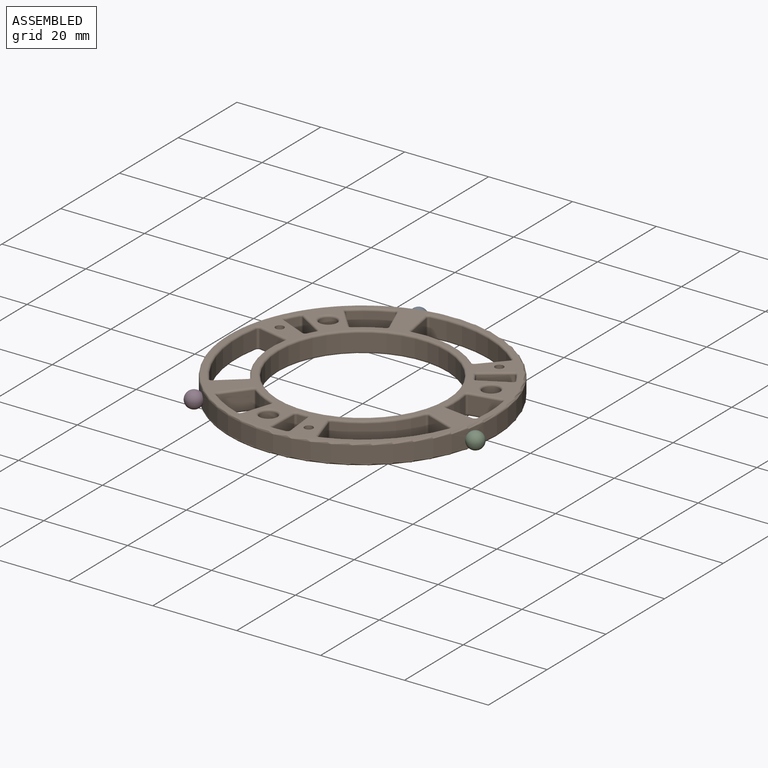
[diagram: assembled view]
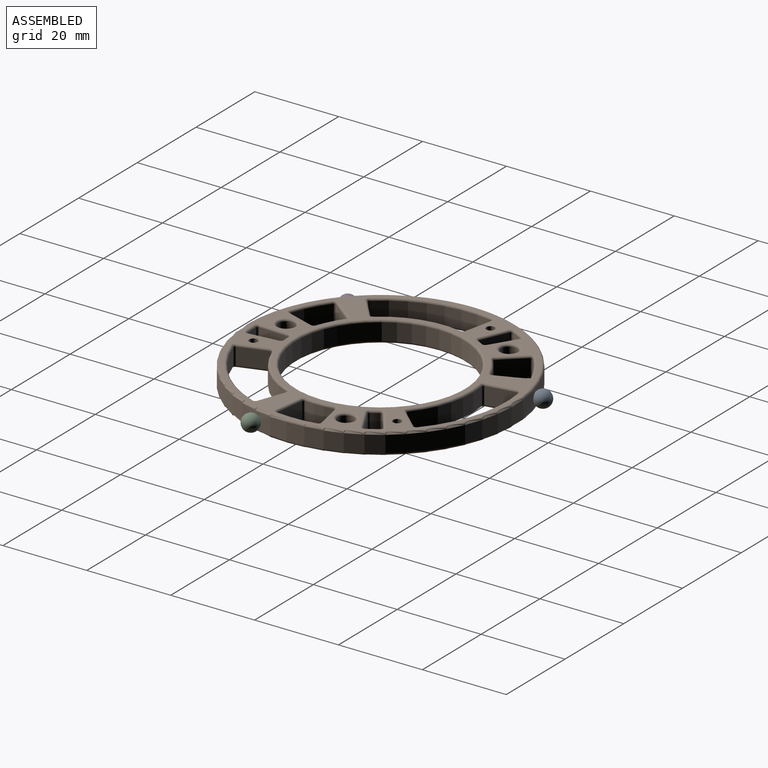
[diagram: assembled view, second angle]
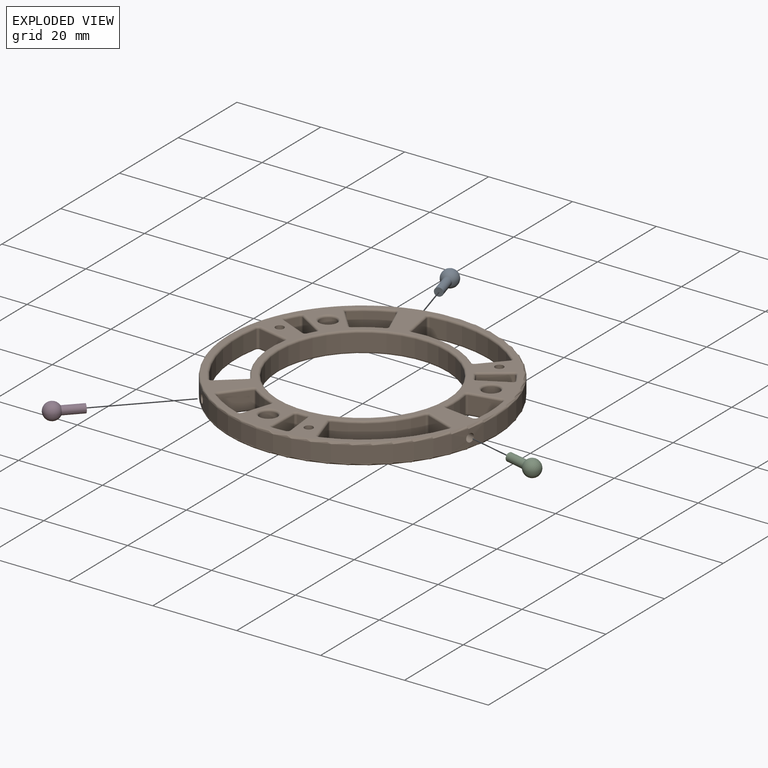
[diagram: exploded view]
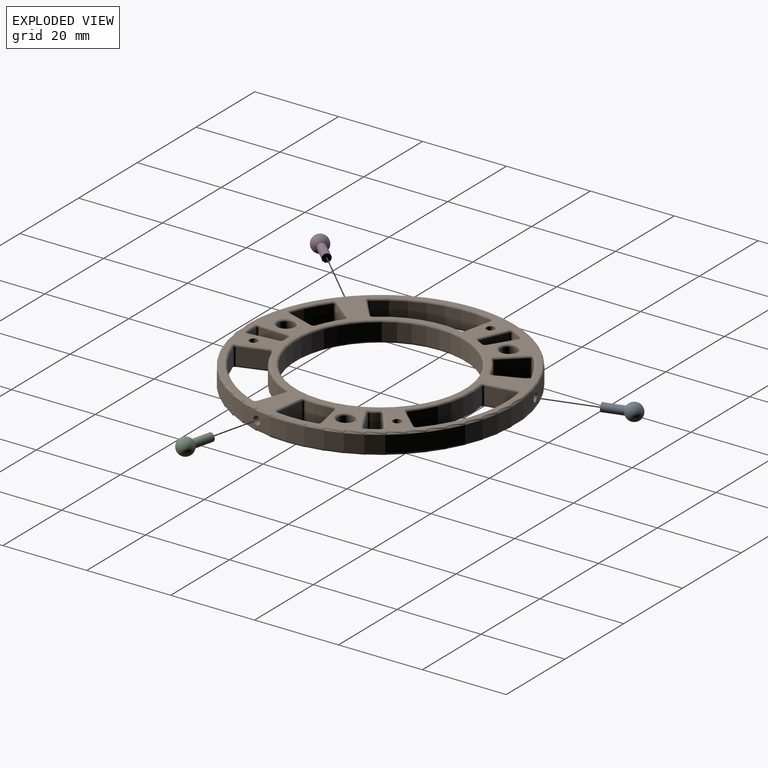
[diagram: exploded view, second angle]
ASSEMBLY  parts=4 mates=3
PART A: 3 faces, bbox 4x8.7x4 mm
  f0: cylinder r=1mm len=5mm, axis (0,1,0), area 31.4mm2, adj f1,f2
  f1: plane 2x2mm, normal (0,1,0), area 3.1mm2, adj f0
  f2: sphere r=2mm, area 46.9mm2, adj f0
PART B: 245 faces, bbox 69.3x69.3x5 mm
  f0: plane 63x63mm, normal (0,0,-1), area 688.5mm2, adj f23,f24,f27,f28,f30,f35,f36,f37
  f1: plane 63x63mm, normal (0,0,1), area 679.1mm2, adj f19,f25,f29,f31,f33,f34,f43,f44
  f2: cylinder r=32mm len=64mm, axis (0,0,-1), area 794.9mm2, adj f21,f89,f92,f108,f185
  f3: plane 6.9x4mm, normal (0.98,0.17,0), area 28mm2, adj f61,f62,f70,f71
  f4: cylinder r=30mm len=24.46mm, axis (0,0,-1), area 105.1mm2, adj f60,f69,f70,f74
  f5: plane 5.19x4.7mm, normal (-0.74,0.67,0), area 28mm2, adj f58,f59,f68,f69
  f6: cylinder r=30mm len=7.87mm, axis (0,0,-1), area 37.2mm2, adj f40,f49,f50,f54
  f7: plane 6.49x4mm, normal (-0.93,-0.37,0), area 28mm2, adj f38,f39,f48,f49
  f8: cylinder r=22mm len=5.58mm, axis (0,0,-1), area 26.4mm2, adj f35,f38,f42,f43
  f9: cylinder r=30mm len=4mm, axis (0,0,-1), area 12.3mm2, adj f28,f32,f34,f167
  f10: plane 5.96x4mm, normal (-0.53,-0.85,0), area 28mm2, adj f26,f27,f31,f32
  f11: cylinder r=22mm len=4mm, axis (0,0,-1), area 8.1mm2, adj f23,f25,f26,f164
  f12: cylinder r=20mm len=40mm, axis (0,0,-1), area 502.7mm2, adj f87,f90
  f13: cylinder r=22mm len=4mm, axis (0,0,-1), area 8.1mm2, adj f75,f79,f80,f188
  f14: plane 5.66x4.13mm, normal (0.59,-0.81,0), area 28mm2, adj f78,f79,f83,f84
  f15: cylinder r=30mm len=4mm, axis (0,0,-1), area 12.3mm2, adj f77,f83,f86,f193
  f16: cylinder r=22mm len=17.73mm, axis (0,0,-1), area 76.2mm2, adj f55,f58,f62,f63
  f17: plane 5.23x4.66mm, normal (0.75,0.67,0), area 28mm2, adj f41,f42,f50,f51
  f18: cylinder r=2mm len=4mm, axis (0,0,-1), area 50.3mm2, adj f88,f91
  f19: cylinder r=1mm len=4mm, axis (0,0,1), area 25.1mm2, adj f1,f20
  f20: plane 2x2mm, normal (0,0,1), area 3.1mm2, adj f19
  f21: cylinder r=1mm len=5.52mm, axis (-0.28,0.96,0), area 32.4mm2, adj f2,f22
  f22: plane 2x1.92mm, normal (-0.28,0.96,0), area 3.1mm2, adj f21
  f23: torus R=21.5mm, axis (0,0,1), area 1.6mm2, adj f0,f11,f24,f162
  f24: torus R=1mm, axis (0,0,1), area 0.8mm2, adj f0,f23,f26,f27
  f25: torus R=21.5mm, axis (0,0,1), area 1.6mm2, adj f1,f11,f29,f166
  f26: cylinder r=0.5mm len=4mm, axis (0,0,-1), area 3.1mm2, adj f10,f11,f24,f29
  f27: cylinder r=0.5mm len=6.22mm, axis (0.85,-0.53,0), area 5.5mm2, adj f0,f10,f24,f30
  f28: torus R=30.5mm, axis (0,0,1), area 2.4mm2, adj f0,f9,f30,f165
  f29: torus R=1mm, axis (0,0,1), area 0.8mm2, adj f1,f25,f26,f31
  f30: torus R=1mm, axis (0,0,1), area 0.9mm2, adj f0,f27,f28,f32
  f31: cylinder r=0.5mm len=6.22mm, axis (-0.85,0.53,0), area 5.5mm2, adj f1,f10,f29,f33
  f32: cylinder r=0.5mm len=4mm, axis (0,0,-1), area 3.2mm2, adj f9,f10,f30,f33
  f33: torus R=1mm, axis (0,0,1), area 0.9mm2, adj f1,f31,f32,f34
  f34: torus R=30.5mm, axis (0,0,1), area 2.4mm2, adj f1,f9,f33,f169
  f35: torus R=21.5mm, axis (0,0,1), area 5.1mm2, adj f0,f8,f36,f37
  f36: torus R=1mm, axis (0,0,1), area 0.8mm2, adj f0,f35,f38,f39
  f37: torus R=1mm, axis (0,0,1), area 0.8mm2, adj f0,f35,f41,f42
  f38: cylinder r=0.5mm len=4mm, axis (0,0,-1), area 3.1mm2, adj f7,f8,f36,f44
  f39: cylinder r=0.5mm len=6.68mm, axis (0.37,-0.93,0), area 5.5mm2, adj f0,f7,f36,f45
  f40: torus R=30.5mm, axis (0,0,1), area 7.3mm2, adj f0,f6,f45,f46
  f41: cylinder r=0.5mm len=5.56mm, axis (-0.67,0.75,0), area 5.5mm2, adj f0,f17,f37,f46
  f42: cylinder r=0.5mm len=4mm, axis (0,0,-1), area 3.1mm2, adj f8,f17,f37,f47
  f43: torus R=21.5mm, axis (0,0,1), area 5.1mm2, adj f1,f8,f44,f47
  f44: torus R=1mm, axis (0,0,1), area 0.8mm2, adj f1,f38,f43,f48
  f45: torus R=1mm, axis (0,0,1), area 0.9mm2, adj f0,f39,f40,f49
  f46: torus R=1mm, axis (0,0,1), area 0.9mm2, adj f0,f40,f41,f50
  f47: torus R=1mm, axis (0,0,1), area 0.8mm2, adj f1,f42,f43,f51
  f48: cylinder r=0.5mm len=6.68mm, axis (-0.37,0.93,0), area 5.5mm2, adj f1,f7,f44,f52
  f49: cylinder r=0.5mm len=4mm, axis (0,0,-1), area 3.2mm2, adj f6,f7,f45,f52
  f50: cylinder r=0.5mm len=4mm, axis (0,0,-1), area 3.2mm2, adj f6,f17,f46,f53
  f51: cylinder r=0.5mm len=5.56mm, axis (0.67,-0.75,0), area 5.5mm2, adj f1,f17,f47,f53
  f52: torus R=1mm, axis (0,0,1), area 0.9mm2, adj f1,f48,f49,f54
  f53: torus R=1mm, axis (0,0,1), area 0.9mm2, adj f1,f50,f51,f54
  f54: torus R=30.5mm, axis (0,0,1), area 7.3mm2, adj f1,f6,f52,f53
  f55: torus R=21.5mm, axis (0,0,1), area 14.8mm2, adj f0,f16,f56,f57
  f56: torus R=1mm, axis (0,0,1), area 0.8mm2, adj f0,f55,f58,f59
  f57: torus R=1mm, axis (0,0,1), area 0.8mm2, adj f0,f55,f61,f62
  f58: cylinder r=0.5mm len=4mm, axis (0,0,-1), area 3.1mm2, adj f5,f16,f56,f64
  f59: cylinder r=0.5mm len=5.53mm, axis (-0.67,-0.74,0), area 5.5mm2, adj f0,f5,f56,f65
  f60: torus R=30.5mm, axis (0,0,1), area 20.8mm2, adj f0,f4,f65,f66
  f61: cylinder r=0.5mm len=6.98mm, axis (-0.17,0.98,0), area 5.5mm2, adj f0,f3,f57,f66
  f62: cylinder r=0.5mm len=4mm, axis (0,0,-1), area 3.1mm2, adj f3,f16,f57,f67
  f63: torus R=21.5mm, axis (0,0,1), area 14.8mm2, adj f1,f16,f64,f67
  f64: torus R=1mm, axis (0,0,1), area 0.8mm2, adj f1,f58,f63,f68
  f65: torus R=1mm, axis (0,0,1), area 0.9mm2, adj f0,f59,f60,f69
  f66: torus R=1mm, axis (0,0,1), area 0.9mm2, adj f0,f60,f61,f70
  f67: torus R=1mm, axis (0,0,1), area 0.8mm2, adj f1,f62,f63,f71
  f68: cylinder r=0.5mm len=5.53mm, axis (0.67,0.74,0), area 5.5mm2, adj f1,f5,f64,f72
  f69: cylinder r=0.5mm len=4mm, axis (0,0,-1), area 3.2mm2, adj f4,f5,f65,f72
  f70: cylinder r=0.5mm len=4mm, axis (0,0,-1), area 3.2mm2, adj f3,f4,f66,f73
  f71: cylinder r=0.5mm len=6.98mm, axis (0.17,-0.98,0), area 5.5mm2, adj f1,f3,f67,f73
  f72: torus R=1mm, axis (0,0,1), area 0.9mm2, adj f1,f68,f69,f74
  f73: torus R=1mm, axis (0,0,1), area 0.9mm2, adj f1,f70,f71,f74
  f74: torus R=30.5mm, axis (0,0,1), area 20.8mm2, adj f1,f4,f72,f73
  f75: torus R=21.5mm, axis (0,0,1), area 1.6mm2, adj f0,f13,f76,f187
  f76: torus R=1mm, axis (0,0,1), area 0.8mm2, adj f0,f75,f78,f79
  f77: torus R=30.5mm, axis (0,0,1), area 2.4mm2, adj f0,f15,f81,f191
  f78: cylinder r=0.5mm len=5.95mm, axis (0.81,0.59,0), area 5.5mm2, adj f0,f14,f76,f81
  f79: cylinder r=0.5mm len=4mm, axis (0,0,-1), area 3.1mm2, adj f13,f14,f76,f82
  f80: torus R=21.5mm, axis (0,0,1), area 1.6mm2, adj f1,f13,f82,f190
  f81: torus R=1mm, axis (0,0,1), area 0.9mm2, adj f0,f77,f78,f83
  f82: torus R=1mm, axis (0,0,1), area 0.8mm2, adj f1,f79,f80,f84
  f83: cylinder r=0.5mm len=4mm, axis (0,0,-1), area 3.2mm2, adj f14,f15,f81,f85
  f84: cylinder r=0.5mm len=5.95mm, axis (-0.81,-0.59,0), area 5.5mm2, adj f1,f14,f82,f85
  f85: torus R=1mm, axis (0,0,1), area 0.9mm2, adj f1,f83,f84,f86
  f86: torus R=30.5mm, axis (0,0,1), area 2.4mm2, adj f1,f15,f85,f194
  f87: torus R=20.5mm, axis (0,0,1), area 99.6mm2, adj f0,f12
  f88: torus R=2.5mm, axis (0,0,1), area 10.8mm2, adj f0,f18
  f89: torus R=31.5mm, axis (0,0,1), area 157mm2, adj f0,f2
  f90: torus R=20.5mm, axis (0,0,1), area 99.6mm2, adj f1,f12
  f91: torus R=2.5mm, axis (0,0,1), area 10.8mm2, adj f1,f18
  f92: torus R=31.5mm, axis (0,0,1), area 157mm2, adj f1,f2
  f93: plane 5.36x4.5mm, normal (-0.64,0.77,0), area 28mm2, adj f148,f149,f157,f158
  f94: cylinder r=30mm len=24.71mm, axis (0,0,-1), area 105.1mm2, adj f147,f156,f157,f161
  f95: plane 6.84x4mm, normal (-0.21,-0.98,0), area 28mm2, adj f145,f146,f155,f156
  f96: cylinder r=30mm len=8.17mm, axis (0,0,-1), area 37.2mm2, adj f127,f136,f137,f141
  f97: plane 5.52x4.31mm, normal (0.79,-0.62,0), area 28mm2, adj f125,f126,f135,f136
  f98: cylinder r=22mm len=5.79mm, axis (0,0,-1), area 26.4mm2, adj f122,f125,f129,f130
  f99: cylinder r=30mm len=4mm, axis (0,0,-1), area 12.3mm2, adj f115,f119,f121,f240
  f100: plane 7x4mm, normal (1,-0.03,0), area 28mm2, adj f113,f114,f118,f119
  f101: cylinder r=22mm len=4mm, axis (0,0,-1), area 8.1mm2, adj f110,f112,f113,f237
  f102: plane 6.4x4mm, normal (0.4,0.91,0), area 28mm2, adj f163,f164,f167,f168
  f103: cylinder r=22mm len=17.91mm, axis (0,0,-1), area 76.2mm2, adj f142,f145,f149,f150
  f104: plane 6.65x4mm, normal (-0.95,0.31,0), area 28mm2, adj f128,f129,f137,f138
  f105: cylinder r=2mm len=4mm, axis (0,0,-1), area 50.3mm2, adj f170,f171
  f106: cylinder r=1mm len=4mm, axis (0,0,1), area 25.1mm2, adj f1,f107
  f107: plane 2x2mm, normal (0,0,1), area 3.1mm2, adj f106
  f108: cylinder r=1mm len=5.1mm, axis (-0.69,-0.72,0), area 32.4mm2, adj f2,f109
  f109: plane 2x1.44mm, normal (-0.69,-0.72,0), area 3.1mm2, adj f108
  f110: torus R=21.5mm, axis (0,0,1), area 1.6mm2, adj f0,f101,f111,f235
  f111: torus R=1mm, axis (0,0,1), area 0.8mm2, adj f0,f110,f113,f114
  f112: torus R=21.5mm, axis (0,0,1), area 1.6mm2, adj f1,f101,f116,f239
  f113: cylinder r=0.5mm len=4mm, axis (0,0,-1), area 3.1mm2, adj f100,f101,f111,f116
  f114: cylinder r=0.5mm len=7.01mm, axis (0.03,1,0), area 5.5mm2, adj f0,f100,f111,f117
  f115: torus R=30.5mm, axis (0,0,1), area 2.4mm2, adj f0,f99,f117,f238
  f116: torus R=1mm, axis (0,0,1), area 0.8mm2, adj f1,f112,f113,f118
  f117: torus R=1mm, axis (0,0,1), area 0.9mm2, adj f0,f114,f115,f119
  f118: cylinder r=0.5mm len=7.01mm, axis (-0.03,-1,0), area 5.5mm2, adj f1,f100,f116,f120
  f119: cylinder r=0.5mm len=4mm, axis (0,0,-1), area 3.2mm2, adj f99,f100,f117,f120
  f120: torus R=1mm, axis (0,0,1), area 0.9mm2, adj f1,f118,f119,f121
  f121: torus R=30.5mm, axis (0,0,1), area 2.4mm2, adj f1,f99,f120,f242
  f122: torus R=21.5mm, axis (0,0,1), area 5.1mm2, adj f0,f98,f123,f124
  f123: torus R=1mm, axis (0,0,1), area 0.8mm2, adj f0,f122,f125,f126
  f124: torus R=1mm, axis (0,0,1), area 0.8mm2, adj f0,f122,f128,f129
  f125: cylinder r=0.5mm len=4mm, axis (0,0,-1), area 3.1mm2, adj f97,f98,f123,f131
  f126: cylinder r=0.5mm len=5.83mm, axis (0.62,0.79,0), area 5.5mm2, adj f0,f97,f123,f132
  f127: torus R=30.5mm, axis (0,0,1), area 7.3mm2, adj f0,f96,f132,f133
  f128: cylinder r=0.5mm len=6.8mm, axis (-0.31,-0.95,0), area 5.5mm2, adj f0,f104,f124,f133
  f129: cylinder r=0.5mm len=4mm, axis (0,0,-1), area 3.1mm2, adj f98,f104,f124,f134
  f130: torus R=21.5mm, axis (0,0,1), area 5.1mm2, adj f1,f98,f131,f134
  f131: torus R=1mm, axis (0,0,1), area 0.8mm2, adj f1,f125,f130,f135
  f132: torus R=1mm, axis (0,0,1), area 0.9mm2, adj f0,f126,f127,f136
  f133: torus R=1mm, axis (0,0,1), area 0.9mm2, adj f0,f127,f128,f137
  f134: torus R=1mm, axis (0,0,1), area 0.8mm2, adj f1,f129,f130,f138
  f135: cylinder r=0.5mm len=5.83mm, axis (-0.62,-0.79,0), area 5.5mm2, adj f1,f97,f131,f139
  f136: cylinder r=0.5mm len=4mm, axis (0,0,-1), area 3.2mm2, adj f96,f97,f132,f139
  f137: cylinder r=0.5mm len=4mm, axis (0,0,-1), area 3.2mm2, adj f96,f104,f133,f140
  f138: cylinder r=0.5mm len=6.8mm, axis (0.31,0.95,0), area 5.5mm2, adj f1,f104,f134,f140
  f139: torus R=1mm, axis (0,0,1), area 0.9mm2, adj f1,f135,f136,f141
  f140: torus R=1mm, axis (0,0,1), area 0.9mm2, adj f1,f137,f138,f141
  f141: torus R=30.5mm, axis (0,0,1), area 7.3mm2, adj f1,f96,f139,f140
  f142: torus R=21.5mm, axis (0,0,1), area 14.8mm2, adj f0,f103,f143,f144
  f143: torus R=1mm, axis (0,0,1), area 0.8mm2, adj f0,f142,f145,f146
  f144: torus R=1mm, axis (0,0,1), area 0.8mm2, adj f0,f142,f148,f149
  f145: cylinder r=0.5mm len=4mm, axis (0,0,-1), area 3.1mm2, adj f95,f103,f143,f151
  f146: cylinder r=0.5mm len=6.95mm, axis (0.98,-0.21,0), area 5.5mm2, adj f0,f95,f143,f152
  f147: torus R=30.5mm, axis (0,0,1), area 20.8mm2, adj f0,f94,f152,f153
  f148: cylinder r=0.5mm len=5.68mm, axis (-0.77,-0.64,0), area 5.5mm2, adj f0,f93,f144,f153
  f149: cylinder r=0.5mm len=4mm, axis (0,0,-1), area 3.1mm2, adj f93,f103,f144,f154
  f150: torus R=21.5mm, axis (0,0,1), area 14.8mm2, adj f1,f103,f151,f154
  f151: torus R=1mm, axis (0,0,1), area 0.8mm2, adj f1,f145,f150,f155
  f152: torus R=1mm, axis (0,0,1), area 0.9mm2, adj f0,f146,f147,f156
  f153: torus R=1mm, axis (0,0,1), area 0.9mm2, adj f0,f147,f148,f157
  f154: torus R=1mm, axis (0,0,1), area 0.8mm2, adj f1,f149,f150,f158
  f155: cylinder r=0.5mm len=6.95mm, axis (-0.98,0.21,0), area 5.5mm2, adj f1,f95,f151,f159
  f156: cylinder r=0.5mm len=4mm, axis (0,0,-1), area 3.2mm2, adj f94,f95,f152,f159
  f157: cylinder r=0.5mm len=4mm, axis (0,0,-1), area 3.2mm2, adj f93,f94,f153,f160
  f158: cylinder r=0.5mm len=5.68mm, axis (0.77,0.64,0), area 5.5mm2, adj f1,f93,f154,f160
  f159: torus R=1mm, axis (0,0,1), area 0.9mm2, adj f1,f155,f156,f161
  f160: torus R=1mm, axis (0,0,1), area 0.9mm2, adj f1,f157,f158,f161
  f161: torus R=30.5mm, axis (0,0,1), area 20.8mm2, adj f1,f94,f159,f160
  f162: torus R=1mm, axis (0,0,1), area 0.8mm2, adj f0,f23,f163,f164
  f163: cylinder r=0.5mm len=6.6mm, axis (-0.91,0.4,0), area 5.5mm2, adj f0,f102,f162,f165
  f164: cylinder r=0.5mm len=4mm, axis (0,0,-1), area 3.1mm2, adj f11,f102,f162,f166
  f165: torus R=1mm, axis (0,0,1), area 0.9mm2, adj f0,f28,f163,f167
  f166: torus R=1mm, axis (0,0,1), area 0.8mm2, adj f1,f25,f164,f168
  f167: cylinder r=0.5mm len=4mm, axis (0,0,-1), area 3.2mm2, adj f9,f102,f165,f169
  f168: cylinder r=0.5mm len=6.6mm, axis (0.91,-0.4,0), area 5.5mm2, adj f1,f102,f166,f169
  f169: torus R=1mm, axis (0,0,1), area 0.9mm2, adj f1,f34,f167,f168
  f170: torus R=2.5mm, axis (0,0,1), area 10.8mm2, adj f0,f105
  f171: torus R=2.5mm, axis (0,0,1), area 10.8mm2, adj f1,f105
  f172: plane 6.58x4mm, normal (-0.34,-0.94,0), area 28mm2, adj f221,f222,f230,f231
  f173: cylinder r=30mm len=18.33mm, axis (0,0,-1), area 105.1mm2, adj f220,f229,f230,f234
  f174: plane 6.66x4mm, normal (0.95,0.31,0), area 28mm2, adj f218,f219,f228,f229
  f175: cylinder r=30mm len=9.26mm, axis (0,0,-1), area 37.2mm2, adj f200,f209,f210,f214
  f176: plane 6.93x4mm, normal (0.14,0.99,0), area 28mm2, adj f198,f199,f208,f209
  f177: cylinder r=22mm len=6.56mm, axis (0,0,-1), area 26.4mm2, adj f195,f198,f202,f203
  f178: plane 6.17x4mm, normal (-0.47,0.88,0), area 28mm2, adj f188,f189,f192,f193
  f179: plane 6.96x4mm, normal (-0.99,-0.11,0), area 28mm2, adj f236,f237,f240,f241
  f180: cylinder r=22mm len=13.29mm, axis (0,0,-1), area 76.2mm2, adj f215,f218,f222,f223
  f181: plane 6.86x4mm, normal (0.2,-0.98,0), area 28mm2, adj f201,f202,f210,f211
  f182: cylinder r=2mm len=4mm, axis (0,0,-1), area 50.3mm2, adj f243,f244
  f183: cylinder r=1mm len=4mm, axis (0,0,1), area 25.1mm2, adj f1,f184
  f184: plane 2x2mm, normal (0,0,1), area 3.1mm2, adj f183
  f185: cylinder r=1mm len=5.49mm, axis (0.97,-0.24,0), area 32.4mm2, adj f2,f186
  f186: plane 2x1.94mm, normal (0.97,-0.24,0), area 3.1mm2, adj f185
  f187: torus R=1mm, axis (0,0,1), area 0.8mm2, adj f0,f75,f188,f189
  f188: cylinder r=0.5mm len=4mm, axis (0,0,-1), area 3.1mm2, adj f13,f178,f187,f190
  f189: cylinder r=0.5mm len=6.4mm, axis (-0.88,-0.47,0), area 5.5mm2, adj f0,f178,f187,f191
  f190: torus R=1mm, axis (0,0,1), area 0.8mm2, adj f1,f80,f188,f192
  f191: torus R=1mm, axis (0,0,1), area 0.9mm2, adj f0,f77,f189,f193
  f192: cylinder r=0.5mm len=6.4mm, axis (0.88,0.47,0), area 5.5mm2, adj f1,f178,f190,f194
  f193: cylinder r=0.5mm len=4mm, axis (0,0,-1), area 3.2mm2, adj f15,f178,f191,f194
  f194: torus R=1mm, axis (0,0,1), area 0.9mm2, adj f1,f86,f192,f193
  f195: torus R=21.5mm, axis (0,0,1), area 5.1mm2, adj f0,f177,f196,f197
  f196: torus R=1mm, axis (0,0,1), area 0.8mm2, adj f0,f195,f198,f199
  f197: torus R=1mm, axis (0,0,1), area 0.8mm2, adj f0,f195,f201,f202
  f198: cylinder r=0.5mm len=4mm, axis (0,0,-1), area 3.1mm2, adj f176,f177,f196,f204
  f199: cylinder r=0.5mm len=7mm, axis (-0.99,0.14,0), area 5.5mm2, adj f0,f176,f196,f205
  f200: torus R=30.5mm, axis (0,0,1), area 7.3mm2, adj f0,f175,f205,f206
  f201: cylinder r=0.5mm len=6.96mm, axis (0.98,0.2,0), area 5.5mm2, adj f0,f181,f197,f206
  f202: cylinder r=0.5mm len=4mm, axis (0,0,-1), area 3.1mm2, adj f177,f181,f197,f207
  f203: torus R=21.5mm, axis (0,0,1), area 5.1mm2, adj f1,f177,f204,f207
  f204: torus R=1mm, axis (0,0,1), area 0.8mm2, adj f1,f198,f203,f208
  f205: torus R=1mm, axis (0,0,1), area 0.9mm2, adj f0,f199,f200,f209
  f206: torus R=1mm, axis (0,0,1), area 0.9mm2, adj f0,f200,f201,f210
  f207: torus R=1mm, axis (0,0,1), area 0.8mm2, adj f1,f202,f203,f211
  f208: cylinder r=0.5mm len=7mm, axis (0.99,-0.14,0), area 5.5mm2, adj f1,f176,f204,f212
  f209: cylinder r=0.5mm len=4mm, axis (0,0,-1), area 3.2mm2, adj f175,f176,f205,f212
  f210: cylinder r=0.5mm len=4mm, axis (0,0,-1), area 3.2mm2, adj f175,f181,f206,f213
  f211: cylinder r=0.5mm len=6.96mm, axis (-0.98,-0.2,0), area 5.5mm2, adj f1,f181,f207,f213
  f212: torus R=1mm, axis (0,0,1), area 0.9mm2, adj f1,f208,f209,f214
  f213: torus R=1mm, axis (0,0,1), area 0.9mm2, adj f1,f210,f211,f214
  f214: torus R=30.5mm, axis (0,0,1), area 7.3mm2, adj f1,f175,f212,f213
  f215: torus R=21.5mm, axis (0,0,1), area 14.8mm2, adj f0,f180,f216,f217
  f216: torus R=1mm, axis (0,0,1), area 0.8mm2, adj f0,f215,f218,f219
  f217: torus R=1mm, axis (0,0,1), area 0.8mm2, adj f0,f215,f221,f222
  f218: cylinder r=0.5mm len=4mm, axis (0,0,-1), area 3.1mm2, adj f174,f180,f216,f224
  f219: cylinder r=0.5mm len=6.82mm, axis (-0.31,0.95,0), area 5.5mm2, adj f0,f174,f216,f225
  f220: torus R=30.5mm, axis (0,0,1), area 20.8mm2, adj f0,f173,f225,f226
  f221: cylinder r=0.5mm len=6.75mm, axis (0.94,-0.34,0), area 5.5mm2, adj f0,f172,f217,f226
  f222: cylinder r=0.5mm len=4mm, axis (0,0,-1), area 3.1mm2, adj f172,f180,f217,f227
  f223: torus R=21.5mm, axis (0,0,1), area 14.8mm2, adj f1,f180,f224,f227
  f224: torus R=1mm, axis (0,0,1), area 0.8mm2, adj f1,f218,f223,f228
  f225: torus R=1mm, axis (0,0,1), area 0.9mm2, adj f0,f219,f220,f229
  f226: torus R=1mm, axis (0,0,1), area 0.9mm2, adj f0,f220,f221,f230
  f227: torus R=1mm, axis (0,0,1), area 0.8mm2, adj f1,f222,f223,f231
  f228: cylinder r=0.5mm len=6.82mm, axis (0.31,-0.95,0), area 5.5mm2, adj f1,f174,f224,f232
  f229: cylinder r=0.5mm len=4mm, axis (0,0,-1), area 3.2mm2, adj f173,f174,f225,f232
  f230: cylinder r=0.5mm len=4mm, axis (0,0,-1), area 3.2mm2, adj f172,f173,f226,f233
  f231: cylinder r=0.5mm len=6.75mm, axis (-0.94,0.34,0), area 5.5mm2, adj f1,f172,f227,f233
  f232: torus R=1mm, axis (0,0,1), area 0.9mm2, adj f1,f228,f229,f234
  f233: torus R=1mm, axis (0,0,1), area 0.9mm2, adj f1,f230,f231,f234
  f234: torus R=30.5mm, axis (0,0,1), area 20.8mm2, adj f1,f173,f232,f233
  f235: torus R=1mm, axis (0,0,1), area 0.8mm2, adj f0,f110,f236,f237
  f236: cylinder r=0.5mm len=7.01mm, axis (0.11,-0.99,0), area 5.5mm2, adj f0,f179,f235,f238
  f237: cylinder r=0.5mm len=4mm, axis (0,0,-1), area 3.1mm2, adj f101,f179,f235,f239
  f238: torus R=1mm, axis (0,0,1), area 0.9mm2, adj f0,f115,f236,f240
  f239: torus R=1mm, axis (0,0,1), area 0.8mm2, adj f1,f112,f237,f241
  f240: cylinder r=0.5mm len=4mm, axis (0,0,-1), area 3.2mm2, adj f99,f179,f238,f242
  f241: cylinder r=0.5mm len=7.01mm, axis (-0.11,0.99,0), area 5.5mm2, adj f1,f179,f239,f242
  f242: torus R=1mm, axis (0,0,1), area 0.9mm2, adj f1,f121,f240,f241
  f243: torus R=2.5mm, axis (0,0,1), area 10.8mm2, adj f0,f182
  f244: torus R=2.5mm, axis (0,0,1), area 10.8mm2, adj f1,f182
PART C: same geometry as A
PART D: same geometry as A
PLACE A rot(axis=(0.99,0.14,0),180deg) t=(-2.42,54.69,8.6)mm
PLACE B t=(0,18,-20.15)mm
PLACE C rot(axis=(0,0,1),76deg) t=(54.74,-0.51,-3.9)mm
PLACE D rot(axis=(0,0,-1),44deg) t=(-27.81,-47.15,-3.9)mm
MATE fastened B.f21 <-> A.f0  axis (-0.28,0.96,0) through (-7.4,25.8,2.35)mm
MATE fastened B.f185 <-> C.f0  axis (0.97,-0.24,0) through (26.04,-6.49,2.35)mm
MATE fastened B.f108 <-> D.f0  axis (-0.69,-0.72,0) through (-18.64,-19.3,2.35)mm
